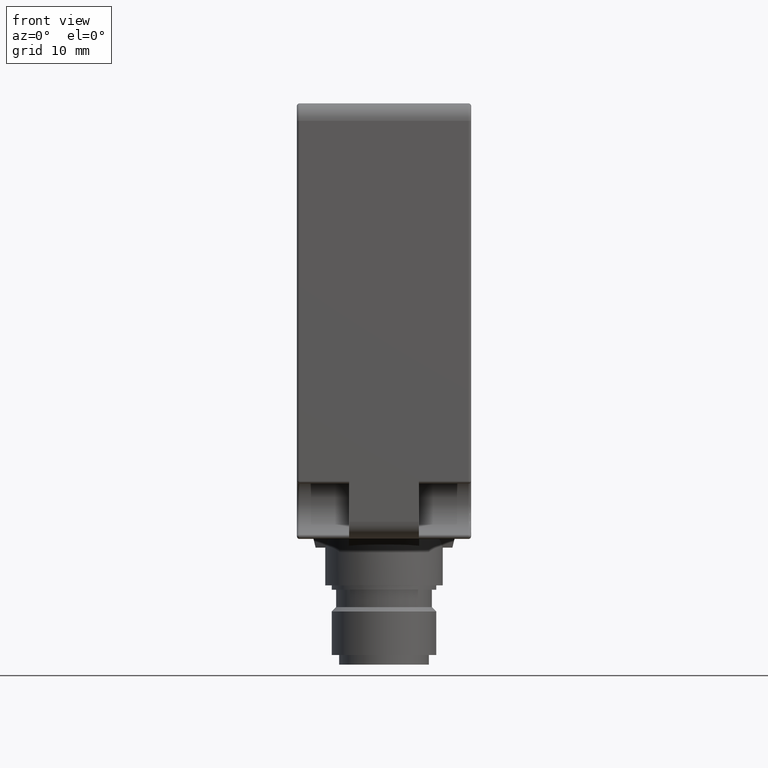
[diagram: clean part render]
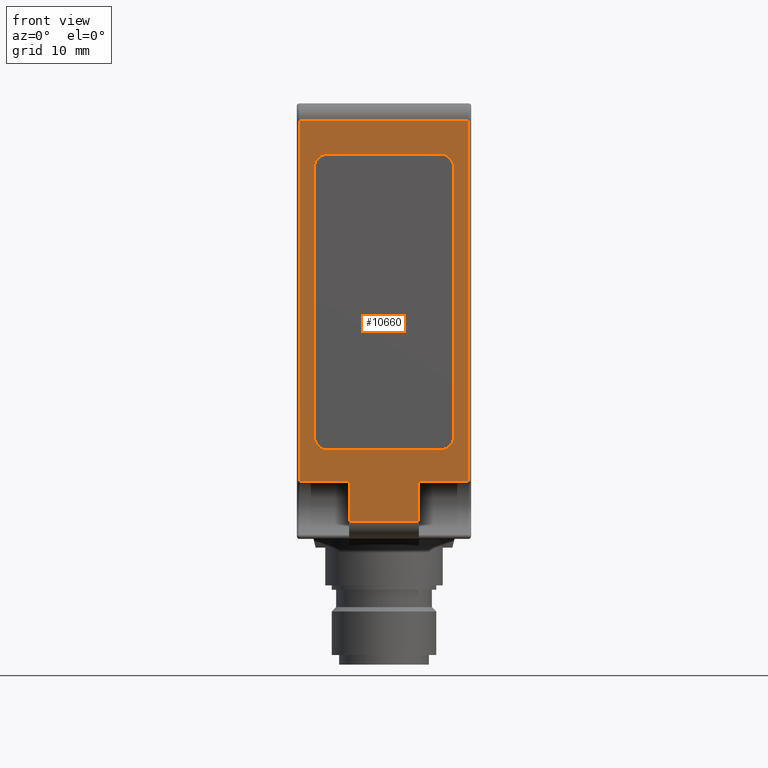
[diagram: same view with one face highlighted and labeled with its STEP entity id]
A machine part, front view. The second image highlights one B-rep face of the part: STEP entity #10660.
In plain terms, the highlighted planar face has unit normal (0, 1, -0).
Its self-contained STEP definition (entity closure, byte-faithful):
#70 = EDGE_CURVE ( 'NONE', #3691, #4379, #13908, .T. ) ;
#114 = VECTOR ( 'NONE', #3394, 1000.000000000000000 ) ;
#180 = EDGE_CURVE ( 'NONE', #9731, #7039, #4870, .T. ) ;
#407 = CARTESIAN_POINT ( 'NONE',  ( 9.700000000000002800, -24.99999999999998600, 22.99999999999998600 ) ) ;
#550 = DIRECTION ( 'NONE',  ( 0.0000000000000000000, 0.0000000000000000000, 1.000000000000000000 ) ) ;
#697 = ORIENTED_EDGE ( 'NONE', *, *, #180, .T. ) ;
#714 = VERTEX_POINT ( 'NONE', #5176 ) ;
#818 = DIRECTION ( 'NONE',  ( -0.0000000000000000000, -0.0000000000000000000, 1.000000000000000000 ) ) ;
#827 = ORIENTED_EDGE ( 'NONE', *, *, #1810, .T. ) ;
#934 = FACE_BOUND ( 'NONE', #2104, .T. ) ;
#1119 = LINE ( 'NONE', #8637, #3688 ) ;
#1241 = CARTESIAN_POINT ( 'NONE',  ( -9.700000000000001100, -24.99999999999997500, -18.35188746462688800 ) ) ;
#1270 = ORIENTED_EDGE ( 'NONE', *, *, #10571, .F. ) ;
#1294 = ORIENTED_EDGE ( 'NONE', *, *, #70, .T. ) ;
#1337 = LINE ( 'NONE', #11629, #12627 ) ;
#1413 = CARTESIAN_POINT ( 'NONE',  ( 6.400000000000000400, -24.99999999999998600, 19.19999999999999900 ) ) ;
#1775 = ORIENTED_EDGE ( 'NONE', *, *, #12499, .T. ) ;
#1810 = EDGE_CURVE ( 'NONE', #2463, #8636, #8285, .T. ) ;
#1833 = EDGE_LOOP ( 'NONE', ( #827, #11062, #5482, #11982, #1905, #1270, #697, #13034 ) ) ;
#1905 = ORIENTED_EDGE ( 'NONE', *, *, #7477, .T. ) ;
#1928 = CARTESIAN_POINT ( 'NONE',  ( -8.000000000000000000, -24.99999999999998600, 17.60000000000000100 ) ) ;
#2073 = LINE ( 'NONE', #1413, #7599 ) ;
#2104 = EDGE_LOOP ( 'NONE', ( #6999, #12578, #7512, #1775, #13117, #2723, #1294, #4070 ) ) ;
#2134 = AXIS2_PLACEMENT_3D ( 'NONE', #10125, #3561, #11215 ) ;
#2197 = DIRECTION ( 'NONE',  ( -0.0000000000000000000, -0.0000000000000000000, -1.000000000000000000 ) ) ;
#2330 = DIRECTION ( 'NONE',  ( 0.0000000000000000000, 1.000000000000000000, -0.0000000000000000000 ) ) ;
#2442 = CARTESIAN_POINT ( 'NONE',  ( 4.000000000000000000, -24.99999999999998200, -23.00000000000000000 ) ) ;
#2463 = VERTEX_POINT ( 'NONE', #4493 ) ;
#2473 = VECTOR ( 'NONE', #13818, 1000.000000000000000 ) ;
#2485 = DIRECTION ( 'NONE',  ( 1.000000000000000000, -0.0000000000000000000, -0.0000000000000000000 ) ) ;
#2514 = CARTESIAN_POINT ( 'NONE',  ( 6.399999999999988800, -24.99999999999998600, -13.19999999999998900 ) ) ;
#2560 = CARTESIAN_POINT ( 'NONE',  ( 4.000000000000000000, -24.99999999999997500, -18.35188746462688800 ) ) ;
#2582 = VECTOR ( 'NONE', #5359, 1000.000000000000000 ) ;
#2723 = ORIENTED_EDGE ( 'NONE', *, *, #8993, .T. ) ;
#2847 = EDGE_CURVE ( 'NONE', #6027, #4711, #11205, .T. ) ;
#3270 = CARTESIAN_POINT ( 'NONE',  ( 8.000000000000000000, -24.99999999999998600, 17.60000000000000100 ) ) ;
#3312 = EDGE_CURVE ( 'NONE', #6023, #3336, #8475, .T. ) ;
#3336 = VERTEX_POINT ( 'NONE', #13375 ) ;
#3394 = DIRECTION ( 'NONE',  ( 1.000000000000000000, -0.0000000000000000000, -0.0000000000000000000 ) ) ;
#3423 = AXIS2_PLACEMENT_3D ( 'NONE', #2514, #10174, #3608 ) ;
#3561 = DIRECTION ( 'NONE',  ( 0.0000000000000000000, 1.000000000000000000, 0.0000000000000000000 ) ) ;
#3608 = DIRECTION ( 'NONE',  ( 0.0000000000000000000, 0.0000000000000000000, 1.000000000000000000 ) ) ;
#3616 = VERTEX_POINT ( 'NONE', #12809 ) ;
#3688 = VECTOR ( 'NONE', #9775, 1000.000000000000000 ) ;
#3691 = VERTEX_POINT ( 'NONE', #8568 ) ;
#3851 = CARTESIAN_POINT ( 'NONE',  ( 6.400000000000000400, -24.99999999999998600, 19.19999999999999900 ) ) ;
#3947 = EDGE_CURVE ( 'NONE', #4379, #6023, #1337, .T. ) ;
#4070 = ORIENTED_EDGE ( 'NONE', *, *, #3947, .T. ) ;
#4257 = VERTEX_POINT ( 'NONE', #2442 ) ;
#4379 = VERTEX_POINT ( 'NONE', #11435 ) ;
#4400 = EDGE_CURVE ( 'NONE', #9359, #6471, #10751, .T. ) ;
#4493 = CARTESIAN_POINT ( 'NONE',  ( -4.000000000000000000, -24.99999999999997500, -18.35188746462688800 ) ) ;
#4555 = DIRECTION ( 'NONE',  ( 0.0000000000000000000, 1.000000000000000000, 0.0000000000000000000 ) ) ;
#4711 = VERTEX_POINT ( 'NONE', #2560 ) ;
#4758 = LINE ( 'NONE', #1928, #10229 ) ;
#4870 = LINE ( 'NONE', #8394, #7806 ) ;
#5176 = CARTESIAN_POINT ( 'NONE',  ( 9.700000000000002800, -24.99999999999998600, 22.99999999999998600 ) ) ;
#5359 = DIRECTION ( 'NONE',  ( 0.0000000000000000000, -1.565608403961334600E-015, -1.000000000000000000 ) ) ;
#5363 = VECTOR ( 'NONE', #6081, 1000.000000000000000 ) ;
#5482 = ORIENTED_EDGE ( 'NONE', *, *, #11726, .F. ) ;
#5483 = CARTESIAN_POINT ( 'NONE',  ( 8.000000000000000000, -24.99999999999998600, -13.19999999999999900 ) ) ;
#5534 = LINE ( 'NONE', #9655, #2582 ) ;
#5746 = EDGE_CURVE ( 'NONE', #3336, #10805, #4758, .T. ) ;
#5868 = DIRECTION ( 'NONE',  ( -0.0000000000000000000, 0.0000000000000000000, 1.000000000000000000 ) ) ;
#6023 = VERTEX_POINT ( 'NONE', #9103 ) ;
#6027 = VERTEX_POINT ( 'NONE', #10191 ) ;
#6081 = DIRECTION ( 'NONE',  ( -0.0000000000000000000, -1.565608403961334600E-015, -1.000000000000000000 ) ) ;
#6205 = VECTOR ( 'NONE', #2197, 1000.000000000000000 ) ;
#6471 = VERTEX_POINT ( 'NONE', #3270 ) ;
#6714 = CARTESIAN_POINT ( 'NONE',  ( -4.000000000000000000, -24.99999999999998200, -23.00000000000000000 ) ) ;
#6803 = FACE_OUTER_BOUND ( 'NONE', #1833, .T. ) ;
#6999 = ORIENTED_EDGE ( 'NONE', *, *, #3312, .T. ) ;
#7039 = VERTEX_POINT ( 'NONE', #1241 ) ;
#7171 = DIRECTION ( 'NONE',  ( 0.0000000000000000000, 1.000000000000000000, 0.0000000000000000000 ) ) ;
#7291 = DIRECTION ( 'NONE',  ( -0.0000000000000000000, -0.0000000000000000000, -1.000000000000000000 ) ) ;
#7477 = EDGE_CURVE ( 'NONE', #6027, #714, #12933, .T. ) ;
#7512 = ORIENTED_EDGE ( 'NONE', *, *, #7976, .T. ) ;
#7599 = VECTOR ( 'NONE', #2485, 1000.000000000000000 ) ;
#7783 = PLANE ( 'NONE',  #12014 ) ;
#7806 = VECTOR ( 'NONE', #7291, 1000.000000000000000 ) ;
#7913 = EDGE_CURVE ( 'NONE', #8636, #4257, #8350, .T. ) ;
#7976 = EDGE_CURVE ( 'NONE', #10805, #3616, #9512, .T. ) ;
#8099 = CARTESIAN_POINT ( 'NONE',  ( -8.000000000000000000, -24.99999999999998600, 17.60000000000000100 ) ) ;
#8285 = LINE ( 'NONE', #11492, #5363 ) ;
#8350 = LINE ( 'NONE', #12028, #14102 ) ;
#8394 = CARTESIAN_POINT ( 'NONE',  ( -9.700000000000001100, -24.99999999999998600, -25.00000000000000000 ) ) ;
#8475 = CIRCLE ( 'NONE', #2134, 1.600000000000000800 ) ;
#8568 = CARTESIAN_POINT ( 'NONE',  ( 8.000000000000000000, -24.99999999999998600, -13.19999999999999900 ) ) ;
#8636 = VERTEX_POINT ( 'NONE', #6714 ) ;
#8637 = CARTESIAN_POINT ( 'NONE',  ( -10.00000000000000000, -24.99999999999998600, 22.99999999999998600 ) ) ;
#8899 = LINE ( 'NONE', #9959, #114 ) ;
#8918 = CARTESIAN_POINT ( 'NONE',  ( -10.00000000000000000, -24.99999999999998600, -25.00000000000000000 ) ) ;
#8993 = EDGE_CURVE ( 'NONE', #6471, #3691, #9089, .T. ) ;
#9089 = LINE ( 'NONE', #5483, #6205 ) ;
#9103 = CARTESIAN_POINT ( 'NONE',  ( -6.399999999999999500, -24.99999999999998600, -14.80000000000000100 ) ) ;
#9359 = VERTEX_POINT ( 'NONE', #3851 ) ;
#9512 = CIRCLE ( 'NONE', #13832, 1.600000000000000800 ) ;
#9655 = CARTESIAN_POINT ( 'NONE',  ( 4.000000000000000000, -24.99999999999998600, -25.00000000000000000 ) ) ;
#9731 = VERTEX_POINT ( 'NONE', #11115 ) ;
#9775 = DIRECTION ( 'NONE',  ( 1.000000000000000000, -0.0000000000000000000, -0.0000000000000000000 ) ) ;
#9959 = CARTESIAN_POINT ( 'NONE',  ( -10.00000000000000000, -24.99999999999997500, -18.35188746462688800 ) ) ;
#9991 = DIRECTION ( 'NONE',  ( 0.0000000000000000000, 0.0000000000000000000, 1.000000000000000000 ) ) ;
#9995 = EDGE_CURVE ( 'NONE', #7039, #2463, #8899, .T. ) ;
#10125 = CARTESIAN_POINT ( 'NONE',  ( -6.399999999999999500, -24.99999999999998600, -13.19999999999999900 ) ) ;
#10174 = DIRECTION ( 'NONE',  ( 0.0000000000000000000, 1.000000000000000000, 0.0000000000000000000 ) ) ;
#10191 = CARTESIAN_POINT ( 'NONE',  ( 9.700000000000002800, -24.99999999999997500, -18.35188746462688800 ) ) ;
#10229 = VECTOR ( 'NONE', #818, 1000.000000000000000 ) ;
#10398 = VECTOR ( 'NONE', #5868, 1000.000000000000000 ) ;
#10507 = CARTESIAN_POINT ( 'NONE',  ( 10.00000000000000000, -24.99999999999997500, -18.35188746462688800 ) ) ;
#10571 = EDGE_CURVE ( 'NONE', #9731, #714, #1119, .T. ) ;
#10601 = DIRECTION ( 'NONE',  ( -1.000000000000000000, -0.0000000000000000000, -0.0000000000000000000 ) ) ;
#10660 = ADVANCED_FACE ( 'NONE', ( #6803, #934 ), #7783, .F. ) ;
#10751 = CIRCLE ( 'NONE', #12470, 1.600000000000000800 ) ;
#10805 = VERTEX_POINT ( 'NONE', #8099 ) ;
#10914 = DIRECTION ( 'NONE',  ( 1.000000000000000000, 0.0000000000000000000, 0.0000000000000000000 ) ) ;
#11062 = ORIENTED_EDGE ( 'NONE', *, *, #7913, .T. ) ;
#11091 = CARTESIAN_POINT ( 'NONE',  ( -6.399999999999999500, -24.99999999999998600, 17.59999999999999800 ) ) ;
#11115 = CARTESIAN_POINT ( 'NONE',  ( -9.700000000000001100, -24.99999999999998600, 22.99999999999998600 ) ) ;
#11205 = LINE ( 'NONE', #10507, #2473 ) ;
#11215 = DIRECTION ( 'NONE',  ( 0.0000000000000000000, 0.0000000000000000000, 1.000000000000000000 ) ) ;
#11435 = CARTESIAN_POINT ( 'NONE',  ( 6.400000000000000400, -24.99999999999998600, -14.80000000000000100 ) ) ;
#11492 = CARTESIAN_POINT ( 'NONE',  ( -4.000000000000000000, -24.99999999999998600, -25.00000000000000000 ) ) ;
#11629 = CARTESIAN_POINT ( 'NONE',  ( -6.400000000000000400, -24.99999999999998600, -14.80000000000000100 ) ) ;
#11726 = EDGE_CURVE ( 'NONE', #4711, #4257, #5534, .T. ) ;
#11982 = ORIENTED_EDGE ( 'NONE', *, *, #2847, .F. ) ;
#12014 = AXIS2_PLACEMENT_3D ( 'NONE', #8918, #2330, #9991 ) ;
#12028 = CARTESIAN_POINT ( 'NONE',  ( -10.00000000000000000, -24.99999999999998600, -23.00000000000000000 ) ) ;
#12159 = DIRECTION ( 'NONE',  ( 0.0000000000000000000, 0.0000000000000000000, 1.000000000000000000 ) ) ;
#12470 = AXIS2_PLACEMENT_3D ( 'NONE', #13657, #7171, #550 ) ;
#12499 = EDGE_CURVE ( 'NONE', #3616, #9359, #2073, .T. ) ;
#12578 = ORIENTED_EDGE ( 'NONE', *, *, #5746, .T. ) ;
#12627 = VECTOR ( 'NONE', #10601, 1000.000000000000000 ) ;
#12809 = CARTESIAN_POINT ( 'NONE',  ( -6.400000000000000400, -24.99999999999998600, 19.19999999999999900 ) ) ;
#12933 = LINE ( 'NONE', #407, #10398 ) ;
#13034 = ORIENTED_EDGE ( 'NONE', *, *, #9995, .T. ) ;
#13117 = ORIENTED_EDGE ( 'NONE', *, *, #4400, .T. ) ;
#13375 = CARTESIAN_POINT ( 'NONE',  ( -8.000000000000000000, -24.99999999999998600, -13.19999999999999900 ) ) ;
#13657 = CARTESIAN_POINT ( 'NONE',  ( 6.399999999999999500, -24.99999999999998600, 17.59999999999999800 ) ) ;
#13818 = DIRECTION ( 'NONE',  ( -1.000000000000000000, -0.0000000000000000000, -0.0000000000000000000 ) ) ;
#13832 = AXIS2_PLACEMENT_3D ( 'NONE', #11091, #4555, #12159 ) ;
#13908 = CIRCLE ( 'NONE', #3423, 1.600000000000011200 ) ;
#14102 = VECTOR ( 'NONE', #10914, 1000.000000000000000 ) ;